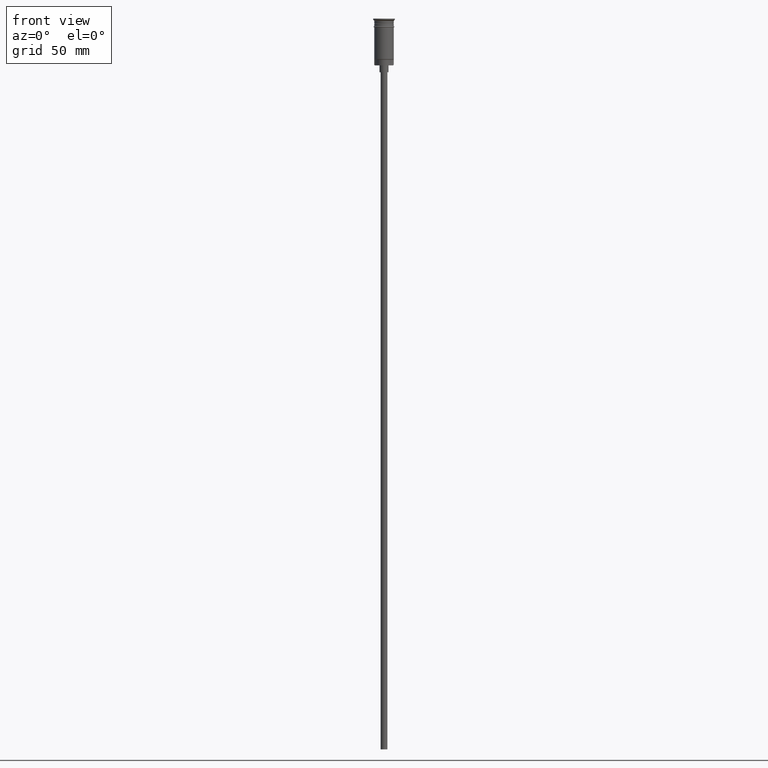
[diagram: clean part render]
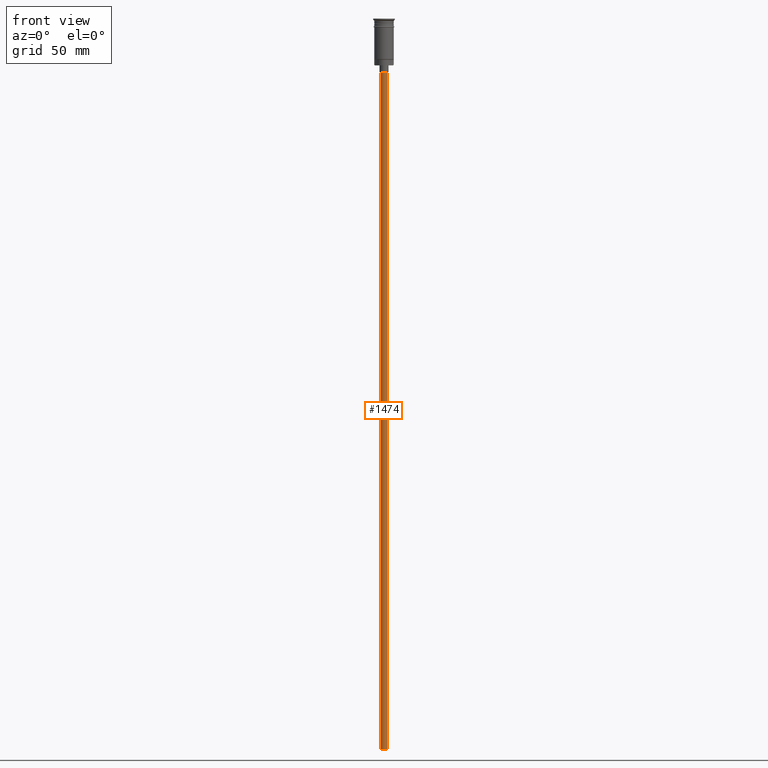
[diagram: same view with one face highlighted and labeled with its STEP entity id]
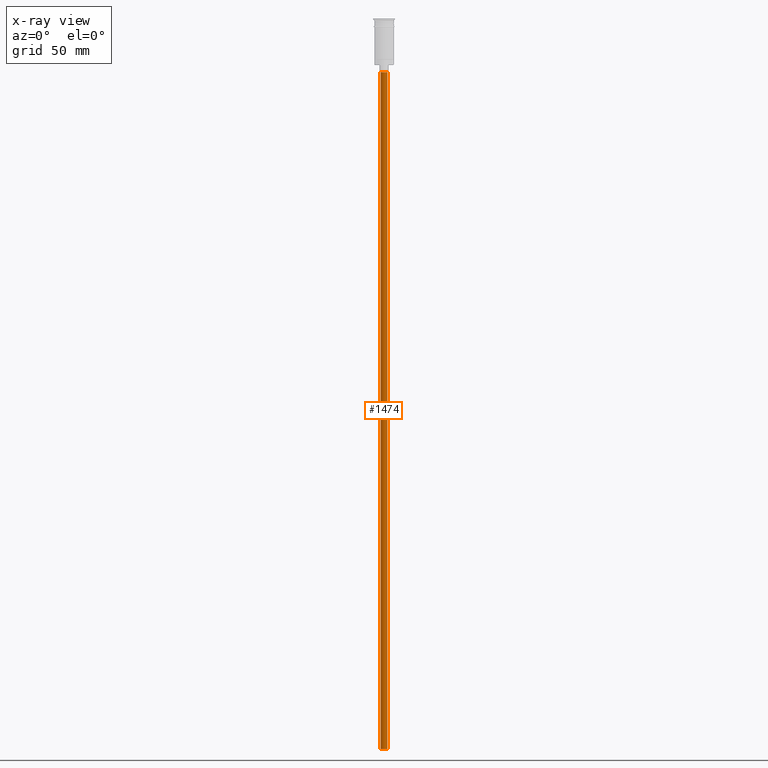
[diagram: x-ray of the same camera — body ghosted, the highlighted face saturated]
A machine part, front view. The second image highlights one B-rep face of the part: STEP entity #1474.
The next image is the same camera in x-ray: the body ghosted, the highlighted face saturated — about 0% of this face is hidden behind the body in this view.
In plain terms, the highlighted cylindrical surface (edge-blend (fillet) strip) has radius 1.5 mm, axis along (-0, -0, 1).
Its self-contained STEP definition (entity closure, byte-faithful):
#14 = AXIS2_PLACEMENT_3D ( 'NONE', #1241, #134, #615 ) ;
#61 = VECTOR ( 'NONE', #902, 1000.000000000000000 ) ;
#75 = CARTESIAN_POINT ( 'NONE',  ( -1.500000000000000222, 1.836970198721030181E-16, -320.5000000000000000 ) ) ;
#134 = DIRECTION ( 'NONE',  ( 0.000000000000000000, 0.000000000000000000, -1.000000000000000000 ) ) ;
#159 = CARTESIAN_POINT ( 'NONE',  ( -1.500000000000000222, 1.836970198721030181E-16, -320.5000000000000000 ) ) ;
#200 = EDGE_CURVE ( 'NONE', #850, #954, #623, .T. ) ;
#225 = FACE_OUTER_BOUND ( 'NONE', #1036, .T. ) ;
#243 = DIRECTION ( 'NONE',  ( -1.000000000000000000, 0.000000000000000000, 0.000000000000000000 ) ) ;
#322 = VERTEX_POINT ( 'NONE', #1268 ) ;
#356 = CARTESIAN_POINT ( 'NONE',  ( 0.000000000000000000, 0.000000000000000000, -23.49999999999999645 ) ) ;
#410 = EDGE_CURVE ( 'NONE', #1160, #322, #650, .T. ) ;
#449 = DIRECTION ( 'NONE',  ( 0.000000000000000000, 0.000000000000000000, -1.000000000000000000 ) ) ;
#472 = DIRECTION ( 'NONE',  ( -0.000000000000000000, -0.000000000000000000, 1.000000000000000000 ) ) ;
#598 = VECTOR ( 'NONE', #472, 1000.000000000000000 ) ;
#604 = DIRECTION ( 'NONE',  ( 1.000000000000000000, 0.000000000000000000, 0.000000000000000000 ) ) ;
#615 = DIRECTION ( 'NONE',  ( -1.000000000000000000, 0.000000000000000000, 0.000000000000000000 ) ) ;
#617 = CARTESIAN_POINT ( 'NONE',  ( 1.500000000000000222, 0.000000000000000000, -320.5000000000000000 ) ) ;
#623 = LINE ( 'NONE', #617, #598 ) ;
#638 = EDGE_CURVE ( 'NONE', #954, #322, #669, .T. ) ;
#650 = LINE ( 'NONE', #75, #61 ) ;
#669 = CIRCLE ( 'NONE', #1089, 1.500000000000000222 ) ;
#704 = ORIENTED_EDGE ( 'NONE', *, *, #638, .T. ) ;
#722 = DIRECTION ( 'NONE',  ( -0.000000000000000000, -0.000000000000000000, 1.000000000000000000 ) ) ;
#849 = CARTESIAN_POINT ( 'NONE',  ( 0.000000000000000000, 0.000000000000000000, -320.5000000000000000 ) ) ;
#850 = VERTEX_POINT ( 'NONE', #1146 ) ;
#902 = DIRECTION ( 'NONE',  ( -0.000000000000000000, -0.000000000000000000, 1.000000000000000000 ) ) ;
#954 = VERTEX_POINT ( 'NONE', #1303 ) ;
#966 = CYLINDRICAL_SURFACE ( 'NONE', #993, 1.500000000000000222 ) ;
#969 = ORIENTED_EDGE ( 'NONE', *, *, #200, .T. ) ;
#989 = CIRCLE ( 'NONE', #14, 1.500000000000000222 ) ;
#993 = AXIS2_PLACEMENT_3D ( 'NONE', #849, #722, #604 ) ;
#1036 = EDGE_LOOP ( 'NONE', ( #1239, #1086, #969, #704 ) ) ;
#1086 = ORIENTED_EDGE ( 'NONE', *, *, #1171, .F. ) ;
#1089 = AXIS2_PLACEMENT_3D ( 'NONE', #356, #449, #243 ) ;
#1146 = CARTESIAN_POINT ( 'NONE',  ( 1.500000000000000222, 0.000000000000000000, -320.5000000000000000 ) ) ;
#1160 = VERTEX_POINT ( 'NONE', #159 ) ;
#1171 = EDGE_CURVE ( 'NONE', #850, #1160, #989, .T. ) ;
#1239 = ORIENTED_EDGE ( 'NONE', *, *, #410, .F. ) ;
#1241 = CARTESIAN_POINT ( 'NONE',  ( 0.000000000000000000, 0.000000000000000000, -320.5000000000000000 ) ) ;
#1268 = CARTESIAN_POINT ( 'NONE',  ( -1.500000000000000222, 1.836970198721030181E-16, -23.49999999999999645 ) ) ;
#1303 = CARTESIAN_POINT ( 'NONE',  ( 1.500000000000000222, 0.000000000000000000, -23.49999999999999645 ) ) ;
#1474 = ADVANCED_FACE ( 'NONE', ( #225 ), #966, .T. ) ;